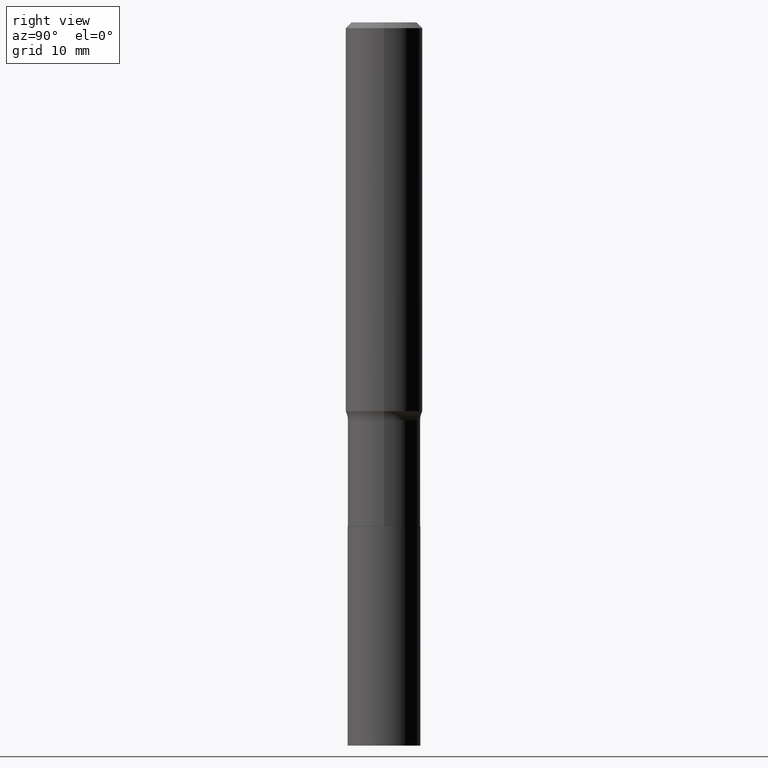
[diagram: clean part render]
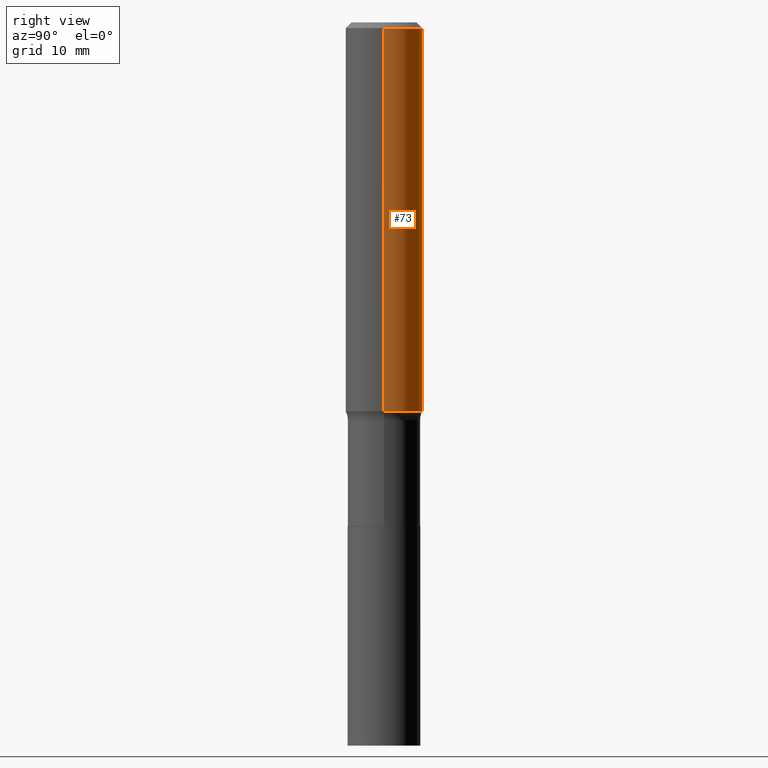
[diagram: same view with one face highlighted and labeled with its STEP entity id]
A machine part, right view. The second image highlights one B-rep face of the part: STEP entity #73.
In plain terms, the highlighted cylindrical surface (partial cylindrical patch) has radius 4.0005 mm, axis along (-0, 0, 1).
Its self-contained STEP definition (entity closure, byte-faithful):
#18 = VERTEX_POINT ( 'NONE', #452 ) ;
#26 = FACE_OUTER_BOUND ( 'NONE', #462, .T. ) ;
#32 = DIRECTION ( 'NONE',  ( 1.000000000000000000, -6.982962677686267499E-15, 4.876176775795936353E-29 ) ) ;
#43 = EDGE_CURVE ( 'NONE', #150, #18, #98, .T. ) ;
#47 = DIRECTION ( 'NONE',  ( -2.445468806185136597E-29, 3.491481338843145583E-15, 1.000000000000000000 ) ) ;
#57 = CARTESIAN_POINT ( 'NONE',  ( -0.1575000000000001954, -4.423060539265832036E-15, -1.587339243784791742 ) ) ;
#69 = VECTOR ( 'NONE', #227, 39.37007874015748143 ) ;
#73 = ADVANCED_FACE ( 'NONE', ( #26 ), #278, .T. ) ;
#85 = CARTESIAN_POINT ( 'NONE',  ( 5.777420054612423732E-31, -8.248624663016986467E-17, -0.02362500000000015976 ) ) ;
#93 = CARTESIAN_POINT ( 'NONE',  ( 0.1575000000000001954, -6.641981969823579487E-15, -1.587339243784791742 ) ) ;
#95 = ORIENTED_EDGE ( 'NONE', *, *, #43, .T. ) ;
#98 = LINE ( 'NONE', #468, #69 ) ;
#112 = EDGE_CURVE ( 'NONE', #395, #180, #250, .T. ) ;
#121 = AXIS2_PLACEMENT_3D ( 'NONE', #246, #162, #388 ) ;
#138 = CARTESIAN_POINT ( 'NONE',  ( 0.000000000000000000, 0.000000000000000000, 0.000000000000000000 ) ) ;
#150 = VERTEX_POINT ( 'NONE', #57 ) ;
#162 = DIRECTION ( 'NONE',  ( -2.445468806185136597E-29, 3.491481338843145583E-15, 1.000000000000000000 ) ) ;
#180 = VERTEX_POINT ( 'NONE', #199 ) ;
#199 = CARTESIAN_POINT ( 'NONE',  ( 0.1575000000000000011, -1.182302868365756877E-15, -0.02362500000000015976 ) ) ;
#203 = CIRCLE ( 'NONE', #121, 0.1575000000000001954 ) ;
#225 = CIRCLE ( 'NONE', #437, 0.1575000000000000011 ) ;
#227 = DIRECTION ( 'NONE',  ( -2.445468806185136877E-29, 3.491481338843145188E-15, 1.000000000000000000 ) ) ;
#246 = CARTESIAN_POINT ( 'NONE',  ( 3.881788605509211766E-29, -5.542165348087991217E-15, -1.587339243784791742 ) ) ;
#248 = EDGE_CURVE ( 'NONE', #395, #150, #203, .T. ) ;
#250 = LINE ( 'NONE', #286, #324 ) ;
#252 = ORIENTED_EDGE ( 'NONE', *, *, #337, .F. ) ;
#271 = DIRECTION ( 'NONE',  ( 1.000000000000000000, -6.982962677686268288E-15, 0.000000000000000000 ) ) ;
#278 = CYLINDRICAL_SURFACE ( 'NONE', #373, 0.1575000000000000844 ) ;
#286 = CARTESIAN_POINT ( 'NONE',  ( 0.1575000000000000844, -1.099816621735587677E-15, 7.679978421878603638E-30 ) ) ;
#319 = ORIENTED_EDGE ( 'NONE', *, *, #248, .T. ) ;
#324 = VECTOR ( 'NONE', #426, 39.37007874015748143 ) ;
#337 = EDGE_CURVE ( 'NONE', #180, #18, #225, .T. ) ;
#373 = AXIS2_PLACEMENT_3D ( 'NONE', #138, #391, #32 ) ;
#388 = DIRECTION ( 'NONE',  ( 1.000000000000000000, -6.982962677686265922E-15, 0.000000000000000000 ) ) ;
#391 = DIRECTION ( 'NONE',  ( -2.445468806185136597E-29, 3.491481338843145583E-15, 1.000000000000000000 ) ) ;
#395 = VERTEX_POINT ( 'NONE', #93 ) ;
#426 = DIRECTION ( 'NONE',  ( -2.445468806185136877E-29, 3.491481338843145188E-15, 1.000000000000000000 ) ) ;
#437 = AXIS2_PLACEMENT_3D ( 'NONE', #85, #47, #271 ) ;
#452 = CARTESIAN_POINT ( 'NONE',  ( -0.1575000000000000011, -1.693220988536922309E-15, -0.02362500000000015976 ) ) ;
#462 = EDGE_LOOP ( 'NONE', ( #319, #95, #252, #466 ) ) ;
#466 = ORIENTED_EDGE ( 'NONE', *, *, #112, .F. ) ;
#468 = CARTESIAN_POINT ( 'NONE',  ( -0.1575000000000000844, 1.119104808822158392E-15, -7.747322767151481189E-30 ) ) ;